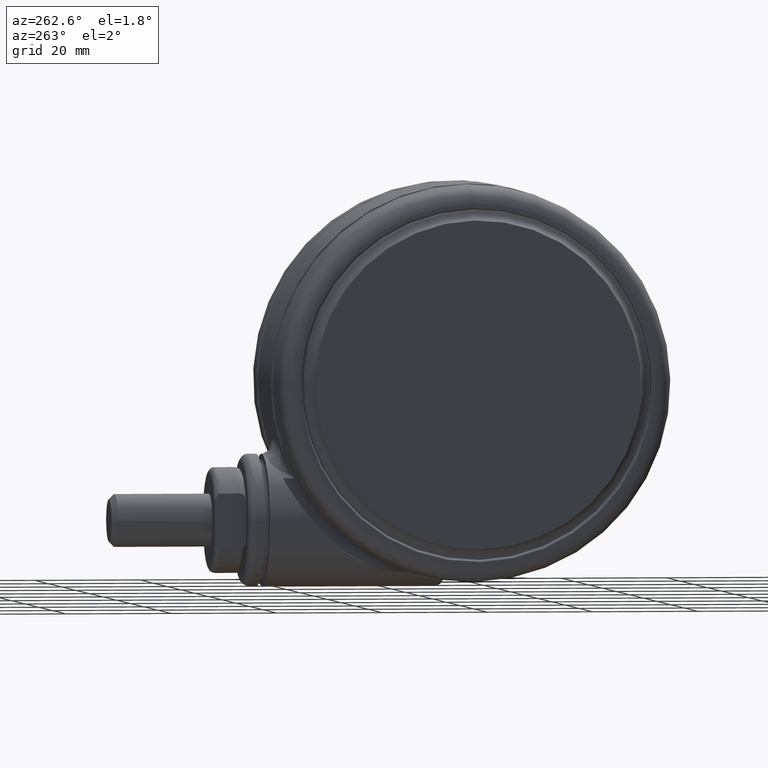
[diagram: clean part render]
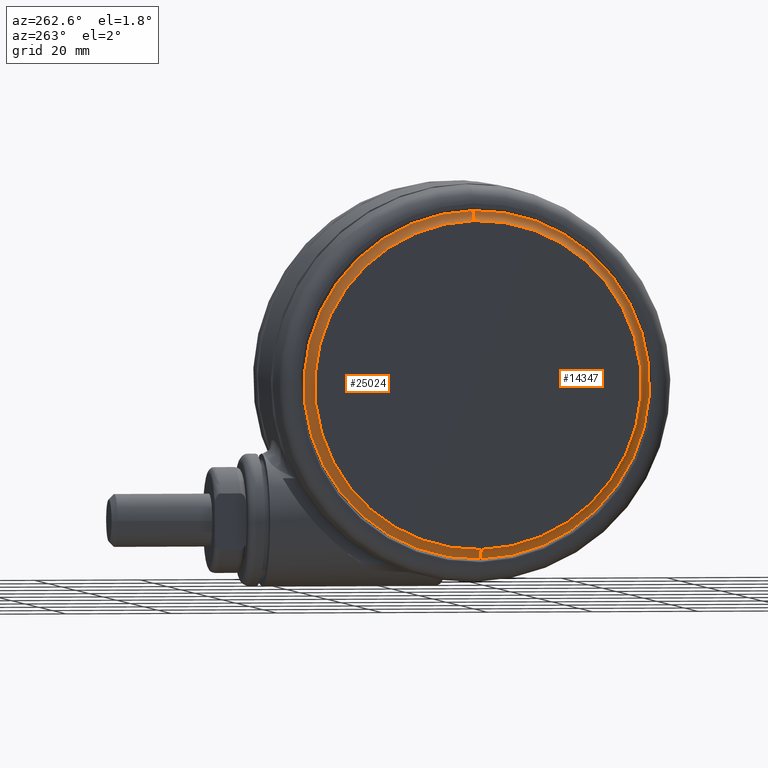
[diagram: same view with one multi-face feature highlighted, each face labeled with its STEP entity id]
A machine part, auxiliary view. The highlighted faces form ONE feature: a constant-radius fillet chain: 2 tangent blend faces with common blend radius 2.2 mm. The faces share edges in the B-rep.
Their STEP definitions:
[1] entity #14347 (Torus):
#1318 = DIRECTION ( 'NONE',  ( 0.0000000000000000000, 0.0000000000000000000, -1.000000000000000000 ) ) ;
#2611 = AXIS2_PLACEMENT_3D ( 'NONE', #51851, #25036, #56368 ) ;
#3429 = ORIENTED_EDGE ( 'NONE', *, *, #6326, .T. ) ;
#5302 = EDGE_CURVE ( 'NONE', #22454, #14311, #55886, .T. ) ;
#6326 = EDGE_CURVE ( 'NONE', #7712, #43908, #47469, .T. ) ;
#7599 = TOROIDAL_SURFACE ( 'NONE', #52466, 33.16625847233755300, 2.200000000000000200 ) ;
#7712 = VERTEX_POINT ( 'NONE', #40945 ) ;
#8994 = DIRECTION ( 'NONE',  ( 0.9112050619175485800, -0.4119530739487649600, 0.0000000000000000000 ) ) ;
#11033 = AXIS2_PLACEMENT_3D ( 'NONE', #35840, #8994, #40359 ) ;
#12349 = CIRCLE ( 'NONE', #49155, 2.199999999999999700 ) ;
#14311 = VERTEX_POINT ( 'NONE', #23431 ) ;
#14347 = ADVANCED_FACE ( 'NONE', ( #56624 ), #7599, .F. ) ;
#14424 = ORIENTED_EDGE ( 'NONE', *, *, #5302, .F. ) ;
#14906 = ORIENTED_EDGE ( 'NONE', *, *, #57892, .F. ) ;
#15828 = ORIENTED_EDGE ( 'NONE', *, *, #22687, .T. ) ;
#19194 = AXIS2_PLACEMENT_3D ( 'NONE', #21542, #52868, #26052 ) ;
#21542 = CARTESIAN_POINT ( 'NONE',  ( -2.081668171172168500E-014, -4.163336342344337000E-014, -45.91190160355291300 ) ) ;
#22454 = VERTEX_POINT ( 'NONE', #25056 ) ;
#22687 = EDGE_CURVE ( 'NONE', #22454, #7712, #25609, .T. ) ;
#23431 = CARTESIAN_POINT ( 'NONE',  ( 12.77054529241169900, 28.24735691944397000, -47.69999999999985400 ) ) ;
#24871 = CARTESIAN_POINT ( 'NONE',  ( 13.66294212905870800, 30.22126260485972100, -48.08382838746725700 ) ) ;
#25036 = DIRECTION ( 'NONE',  ( 0.0000000000000000000, 0.0000000000000000000, -1.000000000000000000 ) ) ;
#25056 = CARTESIAN_POINT ( 'NONE',  ( -12.77054529241173600, -28.24735691944405900, -47.69999999999985400 ) ) ;
#25609 = CIRCLE ( 'NONE', #11033, 2.199999999999998800 ) ;
#26052 = DIRECTION ( 'NONE',  ( 0.4119530739487650100, 0.9112050619175485800, 0.0000000000000000000 ) ) ;
#27210 = CARTESIAN_POINT ( 'NONE',  ( 13.51862088220086900, 29.90203631673286100, -45.91190160355291300 ) ) ;
#29389 = DIRECTION ( 'NONE',  ( -0.4119530739487655100, -0.9112050619175481300, 0.0000000000000000000 ) ) ;
#32653 = CARTESIAN_POINT ( 'NONE',  ( -2.081668171172168500E-014, -4.163336342344337000E-014, -48.08382838746725700 ) ) ;
#32742 = EDGE_LOOP ( 'NONE', ( #14424, #15828, #3429, #14906 ) ) ;
#35840 = CARTESIAN_POINT ( 'NONE',  ( -13.66294212905874500, -30.22126260485980300, -48.08382838746725700 ) ) ;
#40359 = DIRECTION ( 'NONE',  ( 0.4119530739487648500, 0.9112050619175484600, 0.0000000000000000000 ) ) ;
#40945 = CARTESIAN_POINT ( 'NONE',  ( -13.51862088220090800, -29.90203631673294600, -45.91190160355291300 ) ) ;
#41843 = DIRECTION ( 'NONE',  ( 0.4119530739487649600, 0.9112050619175483500, 0.0000000000000000000 ) ) ;
#43908 = VERTEX_POINT ( 'NONE', #27210 ) ;
#47469 = CIRCLE ( 'NONE', #19194, 32.81592428140525200 ) ;
#49155 = AXIS2_PLACEMENT_3D ( 'NONE', #24871, #56208, #29389 ) ;
#51851 = CARTESIAN_POINT ( 'NONE',  ( -2.081668171172168500E-014, -4.163336342344337000E-014, -47.69999999999985400 ) ) ;
#52466 = AXIS2_PLACEMENT_3D ( 'NONE', #32653, #1318, #41843 ) ;
#52868 = DIRECTION ( 'NONE',  ( 0.0000000000000000000, 0.0000000000000000000, -1.000000000000000000 ) ) ;
#55886 = CIRCLE ( 'NONE', #2611, 31.00000000000000400 ) ;
#56208 = DIRECTION ( 'NONE',  ( -0.9112050619175485800, 0.4119530739487650700, 0.0000000000000000000 ) ) ;
#56368 = DIRECTION ( 'NONE',  ( 0.4119530739487650700, 0.9112050619175484600, 0.0000000000000000000 ) ) ;
#56624 = FACE_OUTER_BOUND ( 'NONE', #32742, .T. ) ;
#57892 = EDGE_CURVE ( 'NONE', #14311, #43908, #12349, .T. ) ;
[2] entity #25024 (Torus):
#6442 = DIRECTION ( 'NONE',  ( 0.0000000000000000000, 0.0000000000000000000, -1.000000000000000000 ) ) ;
#7712 = VERTEX_POINT ( 'NONE', #40945 ) ;
#8994 = DIRECTION ( 'NONE',  ( 0.9112050619175485800, -0.4119530739487649600, 0.0000000000000000000 ) ) ;
#11033 = AXIS2_PLACEMENT_3D ( 'NONE', #35840, #8994, #40359 ) ;
#11193 = AXIS2_PLACEMENT_3D ( 'NONE', #33275, #6442, #37785 ) ;
#12349 = CIRCLE ( 'NONE', #49155, 2.199999999999999700 ) ;
#14221 = ORIENTED_EDGE ( 'NONE', *, *, #48037, .F. ) ;
#14311 = VERTEX_POINT ( 'NONE', #23431 ) ;
#17112 = DIRECTION ( 'NONE',  ( 0.4119530739487649600, 0.9112050619175483500, 0.0000000000000000000 ) ) ;
#21386 = CARTESIAN_POINT ( 'NONE',  ( -2.081668171172168500E-014, -4.163336342344337000E-014, -48.08382838746725700 ) ) ;
#22341 = CIRCLE ( 'NONE', #11193, 31.00000000000000400 ) ;
#22454 = VERTEX_POINT ( 'NONE', #25056 ) ;
#22687 = EDGE_CURVE ( 'NONE', #22454, #7712, #25609, .T. ) ;
#23431 = CARTESIAN_POINT ( 'NONE',  ( 12.77054529241169900, 28.24735691944397000, -47.69999999999985400 ) ) ;
#24871 = CARTESIAN_POINT ( 'NONE',  ( 13.66294212905870800, 30.22126260485972100, -48.08382838746725700 ) ) ;
#25024 = ADVANCED_FACE ( 'NONE', ( #57494 ), #45618, .F. ) ;
#25056 = CARTESIAN_POINT ( 'NONE',  ( -12.77054529241173600, -28.24735691944405900, -47.69999999999985400 ) ) ;
#25563 = DIRECTION ( 'NONE',  ( 0.0000000000000000000, 0.0000000000000000000, -1.000000000000000000 ) ) ;
#25609 = CIRCLE ( 'NONE', #11033, 2.199999999999998800 ) ;
#27210 = CARTESIAN_POINT ( 'NONE',  ( 13.51862088220086900, 29.90203631673286100, -45.91190160355291300 ) ) ;
#29389 = DIRECTION ( 'NONE',  ( -0.4119530739487655100, -0.9112050619175481300, 0.0000000000000000000 ) ) ;
#33275 = CARTESIAN_POINT ( 'NONE',  ( -2.081668171172168500E-014, -4.163336342344337000E-014, -47.69999999999985400 ) ) ;
#34927 = DIRECTION ( 'NONE',  ( 0.0000000000000000000, 0.0000000000000000000, -1.000000000000000000 ) ) ;
#35840 = CARTESIAN_POINT ( 'NONE',  ( -13.66294212905874500, -30.22126260485980300, -48.08382838746725700 ) ) ;
#37111 = ORIENTED_EDGE ( 'NONE', *, *, #54590, .T. ) ;
#37768 = AXIS2_PLACEMENT_3D ( 'NONE', #52367, #25563, #56884 ) ;
#37785 = DIRECTION ( 'NONE',  ( 0.4119530739487650700, 0.9112050619175484600, 0.0000000000000000000 ) ) ;
#40359 = DIRECTION ( 'NONE',  ( 0.4119530739487648500, 0.9112050619175484600, 0.0000000000000000000 ) ) ;
#40945 = CARTESIAN_POINT ( 'NONE',  ( -13.51862088220090800, -29.90203631673294600, -45.91190160355291300 ) ) ;
#43681 = ORIENTED_EDGE ( 'NONE', *, *, #57892, .T. ) ;
#43908 = VERTEX_POINT ( 'NONE', #27210 ) ;
#45618 = TOROIDAL_SURFACE ( 'NONE', #55000, 33.16625847233755300, 2.200000000000000200 ) ;
#46970 = CIRCLE ( 'NONE', #37768, 32.81592428140525200 ) ;
#47591 = EDGE_LOOP ( 'NONE', ( #49025, #14221, #43681, #37111 ) ) ;
#48037 = EDGE_CURVE ( 'NONE', #14311, #22454, #22341, .T. ) ;
#49025 = ORIENTED_EDGE ( 'NONE', *, *, #22687, .F. ) ;
#49155 = AXIS2_PLACEMENT_3D ( 'NONE', #24871, #56208, #29389 ) ;
#52367 = CARTESIAN_POINT ( 'NONE',  ( -2.081668171172168500E-014, -4.163336342344337000E-014, -45.91190160355291300 ) ) ;
#54590 = EDGE_CURVE ( 'NONE', #43908, #7712, #46970, .T. ) ;
#55000 = AXIS2_PLACEMENT_3D ( 'NONE', #21386, #34927, #17112 ) ;
#56208 = DIRECTION ( 'NONE',  ( -0.9112050619175485800, 0.4119530739487650700, 0.0000000000000000000 ) ) ;
#56884 = DIRECTION ( 'NONE',  ( 0.4119530739487650100, 0.9112050619175485800, 0.0000000000000000000 ) ) ;
#57494 = FACE_OUTER_BOUND ( 'NONE', #47591, .T. ) ;
#57892 = EDGE_CURVE ( 'NONE', #14311, #43908, #12349, .T. ) ;